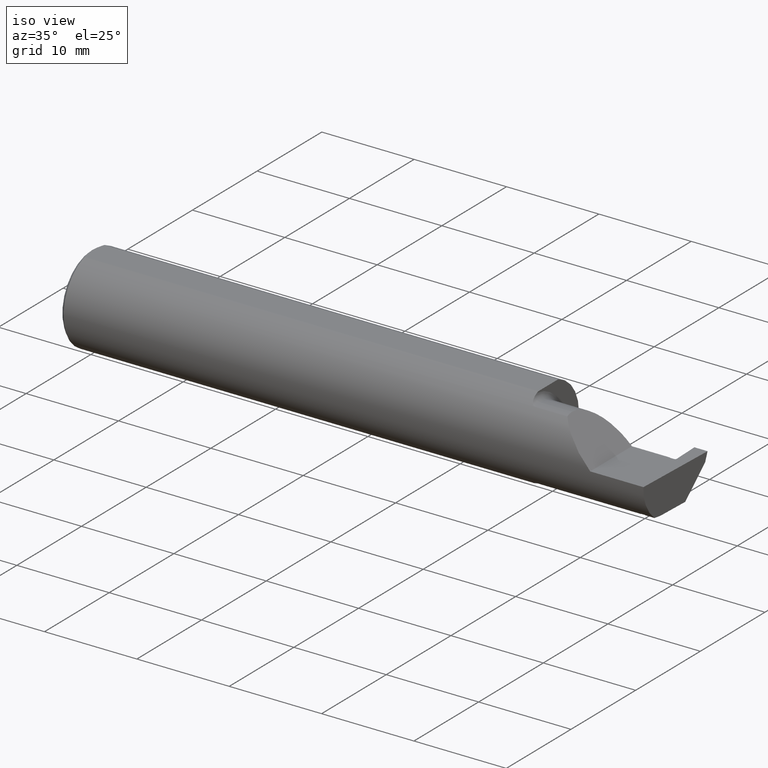
[diagram: clean part render]
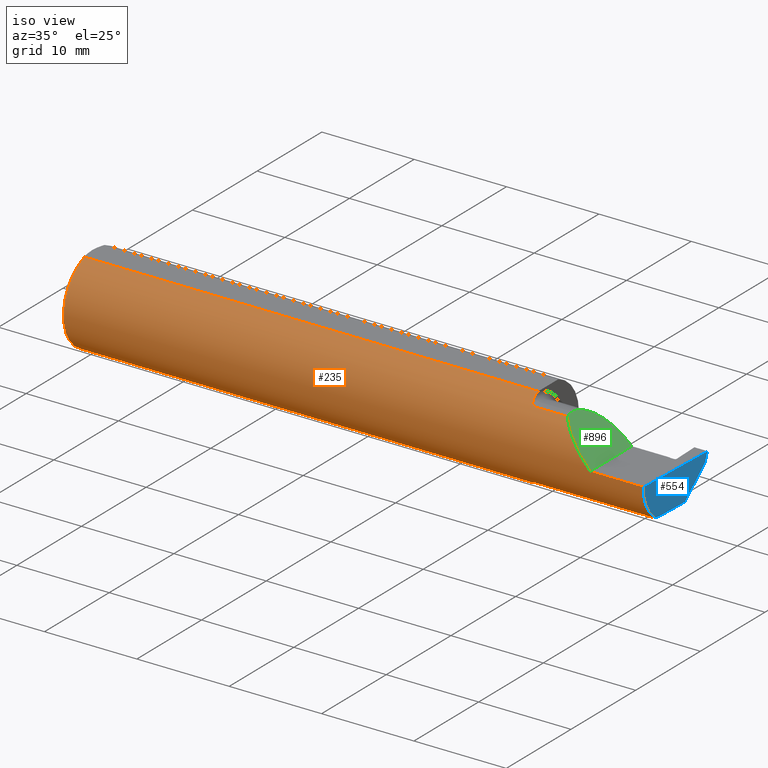
[diagram: same view with three faces highlighted in distinct colors, each labeled with its STEP entity id]
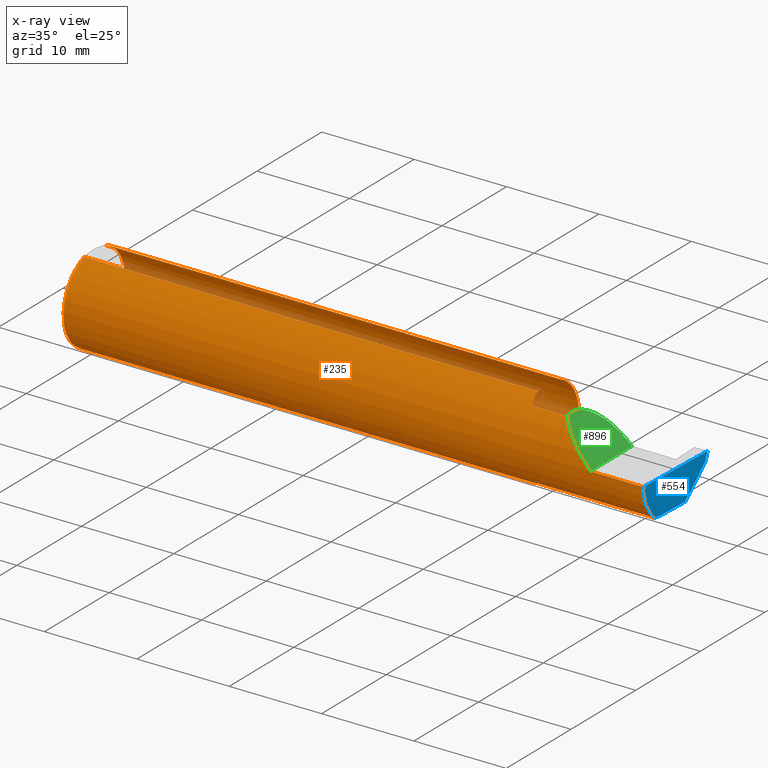
[diagram: x-ray of the same camera — body ghosted, the three highlighted faces saturated]
A machine part, iso view with three faces highlighted in distinct colors.
The next image is the same camera in x-ray (body ghosted, the three faces saturated) — at least one of them is partly hidden behind the body in this view.
Their STEP definitions:

[orange] entity #235 — the highlighted cylindrical surface (partial cylindrical patch) has radius 4.7587 mm, axis along (-1, -0, -0).
#5 = CARTESIAN_POINT ( 'NONE',  ( 1.961340974786206282, -0.1102890168945986904, -0.1514792188789464145 ) ) ;
#6 = CARTESIAN_POINT ( 'NONE',  ( 1.950346246588685162, -0.07856197451716395719, -0.1701664510438046507 ) ) ;
#35 = LINE ( 'NONE', #132, #737 ) ;
#37 = CARTESIAN_POINT ( 'NONE',  ( 1.949999999999999956, -0.06851976604679065053, 0.1743704796142198643 ) ) ;
#41 = CARTESIAN_POINT ( 'NONE',  ( 2.435367547408517019, -0.1203345206023813396, -0.1435953538642355254 ) ) ;
#45 = DIRECTION ( 'NONE',  ( -1.000000000000000000, -0.000000000000000000, -0.000000000000000000 ) ) ;
#54 = ORIENTED_EDGE ( 'NONE', *, *, #812, .T. ) ;
#58 = ORIENTED_EDGE ( 'NONE', *, *, #369, .F. ) ;
#61 = EDGE_CURVE ( 'NONE', #466, #532, #879, .T. ) ;
#64 = AXIS2_PLACEMENT_3D ( 'NONE', #178, #498, #567 ) ;
#67 = ORIENTED_EDGE ( 'NONE', *, *, #261, .F. ) ;
#69 = EDGE_CURVE ( 'NONE', #712, #448, #485, .T. ) ;
#76 = CARTESIAN_POINT ( 'NONE',  ( 2.450688798580827665, -0.1181608706206762477, -0.1453938283944338772 ) ) ;
#81 = CARTESIAN_POINT ( 'NONE',  ( 1.966924463282975211, -0.1152182125075827540, 0.1477647100440765693 ) ) ;
#84 = CARTESIAN_POINT ( 'NONE',  ( 2.260000000000000231, -0.1873499999999999888, 2.939152317953647352E-17 ) ) ;
#88 = CARTESIAN_POINT ( 'NONE',  ( 2.487009473749072441, -0.1873499999999999055, 0.000000000000000000 ) ) ;
#89 = CARTESIAN_POINT ( 'NONE',  ( 0.01499999999999756042, 0.06039039658754215278, 0.1773499999999999799 ) ) ;
#114 = FACE_OUTER_BOUND ( 'NONE', #401, .T. ) ;
#117 = CARTESIAN_POINT ( 'NONE',  ( 1.951062863587533558, -0.08334999999998814191, 0.1677879614275171183 ) ) ;
#121 = VERTEX_POINT ( 'NONE', #89 ) ;
#123 = CARTESIAN_POINT ( 'NONE',  ( 2.441709548055253087, -0.1207156342425846213, -0.1432751135033943357 ) ) ;
#128 = EDGE_CURVE ( 'NONE', #997, #650, #156, .T. ) ;
#132 = CARTESIAN_POINT ( 'NONE',  ( 2.206999999999999851, -0.1172600179964007477, -0.1461167706989302817 ) ) ;
#135 = VERTEX_POINT ( 'NONE', #84 ) ;
#140 = VERTEX_POINT ( 'NONE', #424 ) ;
#148 = VECTOR ( 'NONE', #732, 39.37007874015748143 ) ;
#155 = CARTESIAN_POINT ( 'NONE',  ( 2.451191799767826307, -0.1172600179964005812, -0.1461167706989303094 ) ) ;
#156 = B_SPLINE_CURVE_WITH_KNOTS ( 'NONE', 3,
 ( #800, #6, #965, #586 ),
 .UNSPECIFIED., .F., .F.,
 ( 4, 4 ),
 ( 0.001278539404338875510, 0.001694873732696221573 ),
 .UNSPECIFIED. ) ;
#157 = EDGE_CURVE ( 'NONE', #310, #121, #490, .T. ) ;
#158 = CARTESIAN_POINT ( 'NONE',  ( 1.965551048069661855, -0.1140002044565611855, -0.1486821290834929865 ) ) ;
#161 = CARTESIAN_POINT ( 'NONE',  ( 1.959249444250374061, -0.1073163636891284189, 0.1536158790136665786 ) ) ;
#162 = CARTESIAN_POINT ( 'NONE',  ( 2.202189699843949633, -0.1873500000000000998, 0.05781030015605104211 ) ) ;
#164 = VERTEX_POINT ( 'NONE', #495 ) ;
#167 = CARTESIAN_POINT ( 'NONE',  ( 1.974999999999999867, -0.1172600179964007477, 0.1461167706989302539 ) ) ;
#169 = B_SPLINE_CURVE_WITH_KNOTS ( 'NONE', 3,
 ( #834, #590, #277, #117 ),
 .UNSPECIFIED., .F., .F.,
 ( 4, 4 ),
 ( 4.423516731080786679E-05, 0.0004561457252213468741 ),
 .UNSPECIFIED. ) ;
#174 = CARTESIAN_POINT ( 'NONE',  ( 1.951062863587535334, -0.08334999999999985476, -0.1677879614275112619 ) ) ;
#178 = CARTESIAN_POINT ( 'NONE',  ( 1.949999999999999956, 0.000000000000000000, 0.000000000000000000 ) ) ;
#181 = EDGE_CURVE ( 'NONE', #239, #746, #233, .T. ) ;
#198 = EDGE_CURVE ( 'NONE', #778, #164, #35, .T. ) ;
#203 = VECTOR ( 'NONE', #716, 39.37007874015748143 ) ;
#207 = ORIENTED_EDGE ( 'NONE', *, *, #757, .F. ) ;
#208 = CARTESIAN_POINT ( 'NONE',  ( 2.427647260851145017, -0.1172600179964005812, -0.1461167706989303094 ) ) ;
#211 = CARTESIAN_POINT ( 'NONE',  ( 2.444528240385034579, -0.1208845165661996957, -0.1431326948273232980 ) ) ;
#218 = ORIENTED_EDGE ( 'NONE', *, *, #551, .F. ) ;
#230 = CARTESIAN_POINT ( 'NONE',  ( 2.150065971957467070, -0.1623470442677541759, 0.1099340280425336880 ) ) ;
#231 = CIRCLE ( 'NONE', #64, 0.1873499999999999888 ) ;
#233 = B_SPLINE_CURVE_WITH_KNOTS ( 'NONE', 3,
 ( #289, #211, #283, #123, #600, #530, #41, #460, #1000, #695 ),
 .UNSPECIFIED., .F., .F.,
 ( 4, 3, 3, 4 ),
 ( 1.393189244890212689E-17, 0.0001077215141513441474, 0.0002693037975399365782, 0.0004308860927659723204 ),
 .UNSPECIFIED. ) ;
#235 = ADVANCED_FACE ( 'NONE', ( #114 ), #843, .T. ) ;
#237 = CARTESIAN_POINT ( 'NONE',  ( 1.967163414264744503, -0.1151183835841406988, -0.1478135984872521180 ) ) ;
#239 = VERTEX_POINT ( 'NONE', #617 ) ;
#242 = CARTESIAN_POINT ( 'NONE',  ( 1.955806801261506855, -0.1009700360460131507, -0.1578590382459147401 ) ) ;
#243 = ORIENTED_EDGE ( 'NONE', *, *, #347, .F. ) ;
#250 = VERTEX_POINT ( 'NONE', #1003 ) ;
#251 = AXIS2_PLACEMENT_3D ( 'NONE', #450, #689, #606 ) ;
#261 = EDGE_CURVE ( 'NONE', #532, #598, #676, .T. ) ;
#266 = CARTESIAN_POINT ( 'NONE',  ( 1.952158970028690543, -0.09067355718685699006, 0.1641499263364886163 ) ) ;
#267 = CARTESIAN_POINT ( 'NONE',  ( 2.113883229301070532, -0.1172600179964006645, 0.1461167706989302539 ) ) ;
#269 = ORIENTED_EDGE ( 'NONE', *, *, #181, .F. ) ;
#277 = CARTESIAN_POINT ( 'NONE',  ( 1.950344683557281300, -0.07855153123406181936, 0.1701716388274757685 ) ) ;
#283 = CARTESIAN_POINT ( 'NONE',  ( 2.443118891017411087, -0.1208001381097835586, -0.1432039152493819190 ) ) ;
#288 = CARTESIAN_POINT ( 'NONE',  ( 2.428107891671470231, -0.1181636587484602707, -0.1453915908968996529 ) ) ;
#289 = CARTESIAN_POINT ( 'NONE',  ( 2.445937596161425365, -0.1209687695218782666, -0.1430614528807906960 ) ) ;
#293 = DIRECTION ( 'NONE',  ( 0.000000000000000000, 0.000000000000000000, -1.000000000000000000 ) ) ;
#310 = VERTEX_POINT ( 'NONE', #597 ) ;
#312 = EDGE_CURVE ( 'NONE', #250, #466, #472, .T. ) ;
#314 = CARTESIAN_POINT ( 'NONE',  ( 2.447211118896980508, -0.1210449020109016921, -0.1429970773740948942 ) ) ;
#315 = CARTESIAN_POINT ( 'NONE',  ( 2.206999999999999851, -0.1172600179964007477, 0.1461167706989302817 ) ) ;
#320 = CARTESIAN_POINT ( 'NONE',  ( 1.972868998470237667, -0.1172600179964007339, -0.1461167706989302539 ) ) ;
#332 = ORIENTED_EDGE ( 'NONE', *, *, #61, .F. ) ;
#346 = ORIENTED_EDGE ( 'NONE', *, *, #858, .T. ) ;
#347 = EDGE_CURVE ( 'NONE', #164, #239, #545, .T. ) ;
#354 =( BOUNDED_CURVE ( )  B_SPLINE_CURVE ( 3, ( #476, #789, #568, #88 ),
 .UNSPECIFIED., .F., .T. ) 
 B_SPLINE_CURVE_WITH_KNOTS ( ( 4, 4 ),
 ( 6.032366188922103412, 6.926893589830550368 ),
 .UNSPECIFIED. ) 
 CURVE ( )  GEOMETRIC_REPRESENTATION_ITEM ( )  RATIONAL_B_SPLINE_CURVE ( ( 1.000000000000000000, 0.9344226172588803170, 0.9344226172588803170, 1.000000000000000000 ) ) 
 REPRESENTATION_ITEM ( '' )  );
#356 = CIRCLE ( 'NONE', #866, 0.1873499999999999888 ) ;
#369 = EDGE_CURVE ( 'NONE', #121, #250, #356, .T. ) ;
#380 = ORIENTED_EDGE ( 'NONE', *, *, #128, .F. ) ;
#382 = CARTESIAN_POINT ( 'NONE',  ( 2.448382007790243620, -0.1204607716139674406, -0.1434925048654560054 ) ) ;
#401 = EDGE_LOOP ( 'NONE', ( #640, #346, #786, #54, #616, #833, #807, #67, #332, #603, #58, #813, #218, #380, #207, #644, #876, #269, #243 ) ) ;
#404 = CARTESIAN_POINT ( 'NONE',  ( 2.260000000000000231, -0.1873499999999999888, 2.939152317953647352E-17 ) ) ;
#411 = CARTESIAN_POINT ( 'NONE',  ( 2.113883229301070532, -0.1172600179964006645, 0.1461167706989302539 ) ) ;
#414 = B_SPLINE_CURVE_WITH_KNOTS ( 'NONE', 3,
 ( #465, #320, #484, #237, #158, #5, #794, #242, #810, #562, #961, #174 ),
 .UNSPECIFIED., .F., .F.,
 ( 4, 2, 2, 2, 2, 4 ),
 ( 1.967976973658592312E-07, 0.0001599896235275547862, 0.0003197824493577436779, 0.0006393681010181210276, 0.0009589537526784982146, 0.001278539404338875510 ),
 .UNSPECIFIED. ) ;
#417 = CARTESIAN_POINT ( 'NONE',  ( 1.961319809340846376, -0.1102629523538396217, 0.1514982751257169247 ) ) ;
#419 = CARTESIAN_POINT ( 'NONE',  ( 0.000000000000000000, 0.06039039658753697637, 0.1773499999999999799 ) ) ;
#424 = CARTESIAN_POINT ( 'NONE',  ( 1.951062863587533558, -0.08334999999998814191, 0.1677879614275171183 ) ) ;
#448 = VERTEX_POINT ( 'NONE', #980 ) ;
#450 = CARTESIAN_POINT ( 'NONE',  ( 0.000000000000000000, 0.000000000000000000, 0.000000000000000000 ) ) ;
#458 = VECTOR ( 'NONE', #891, 39.37007874015748143 ) ;
#460 = CARTESIAN_POINT ( 'NONE',  ( 2.433253561409998600, -0.1202072007494127959, -0.1437020493321447545 ) ) ;
#465 = CARTESIAN_POINT ( 'NONE',  ( 1.974999999999999867, -0.1172600179964006922, -0.1461167706989302817 ) ) ;
#466 = VERTEX_POINT ( 'NONE', #960 ) ;
#467 = CARTESIAN_POINT ( 'NONE',  ( 2.429025632386660583, -0.1199517158066738254, -0.1439152819370999037 ) ) ;
#472 = CIRCLE ( 'NONE', #535, 0.1873499999999999888 ) ;
#476 = CARTESIAN_POINT ( 'NONE',  ( 2.485628535317038867, -0.1172600179964007477, -0.1461167706989302817 ) ) ;
#477 = DIRECTION ( 'NONE',  ( 1.000000000000000000, 0.000000000000000000, 0.000000000000000000 ) ) ;
#478 = CARTESIAN_POINT ( 'NONE',  ( 2.445937596161425365, -0.1209687695218782666, -0.1430614528807906960 ) ) ;
#482 = EDGE_CURVE ( 'NONE', #140, #559, #614, .T. ) ;
#484 = CARTESIAN_POINT ( 'NONE',  ( 1.970804171164107332, -0.1167508198888949633, -0.1465276362740037530 ) ) ;
#485 = LINE ( 'NONE', #1031, #521 ) ;
#490 = LINE ( 'NONE', #419, #148 ) ;
#495 = CARTESIAN_POINT ( 'NONE',  ( 2.451191799767826307, -0.1172600179964005812, -0.1461167706989303094 ) ) ;
#498 = DIRECTION ( 'NONE',  ( 1.000000000000000000, 0.000000000000000000, 0.000000000000000000 ) ) ;
#501 = CARTESIAN_POINT ( 'NONE',  ( 2.487009473749072441, -0.1873499999999999055, 0.000000000000000000 ) ) ;
#503 = AXIS2_PLACEMENT_3D ( 'NONE', #698, #682, #293 ) ;
#521 = VECTOR ( 'NONE', #704, 39.37007874015748143 ) ;
#530 = CARTESIAN_POINT ( 'NONE',  ( 2.437481533252171761, -0.1204618404460228720, -0.1434886584041424606 ) ) ;
#532 = VERTEX_POINT ( 'NONE', #895 ) ;
#535 = AXIS2_PLACEMENT_3D ( 'NONE', #544, #862, #776 ) ;
#537 = CARTESIAN_POINT ( 'NONE',  ( 2.429025632386660583, -0.1199517158066738254, -0.1439152819370999037 ) ) ;
#544 = CARTESIAN_POINT ( 'NONE',  ( 0.01499999999999999944, 0.000000000000000000, 0.000000000000000000 ) ) ;
#545 = B_SPLINE_CURVE_WITH_KNOTS ( 'NONE', 3,
 ( #155, #76, #642, #382, #314, #478 ),
 .UNSPECIFIED., .F., .F.,
 ( 4, 2, 4 ),
 ( 0.0002908273715208986934, 0.0003847775289457093821, 0.0004787276863705201249 ),
 .UNSPECIFIED. ) ;
#550 = CARTESIAN_POINT ( 'NONE',  ( 2.485628535317038867, -0.1172600179964007477, -0.1461167706989302817 ) ) ;
#551 = EDGE_CURVE ( 'NONE', #650, #310, #231, .T. ) ;
#556 = DIRECTION ( 'NONE',  ( -1.000000000000000000, -0.000000000000000000, -0.000000000000000000 ) ) ;
#559 = VERTEX_POINT ( 'NONE', #595 ) ;
#562 = CARTESIAN_POINT ( 'NONE',  ( 1.952380638915944600, -0.09060738690120603844, -0.1640321561807270845 ) ) ;
#566 = EDGE_CURVE ( 'NONE', #598, #140, #169, .T. ) ;
#567 = DIRECTION ( 'NONE',  ( 0.000000000000000000, 0.000000000000000000, -1.000000000000000000 ) ) ;
#568 = CARTESIAN_POINT ( 'NONE',  ( 2.485494735025390867, -0.1873500000000000443, -0.05781030015605120170 ) ) ;
#586 = CARTESIAN_POINT ( 'NONE',  ( 1.949999999999999956, -0.06851976604679065053, -0.1743704796142198643 ) ) ;
#590 = CARTESIAN_POINT ( 'NONE',  ( 1.949999999999999512, -0.07360907839729495528, 0.1723706084642000758 ) ) ;
#595 = CARTESIAN_POINT ( 'NONE',  ( 1.974999999999999867, -0.1172600179964007477, 0.1461167706989302539 ) ) ;
#597 = CARTESIAN_POINT ( 'NONE',  ( 1.949999999999999956, 0.06039039658754216666, 0.1773499999999999799 ) ) ;
#598 = VERTEX_POINT ( 'NONE', #37 ) ;
#600 = CARTESIAN_POINT ( 'NONE',  ( 2.439595533463657873, -0.1205888784328906921, -0.1433819108919077989 ) ) ;
#603 = ORIENTED_EDGE ( 'NONE', *, *, #312, .F. ) ;
#606 = DIRECTION ( 'NONE',  ( 0.000000000000000000, 0.000000000000000000, 1.000000000000000000 ) ) ;
#614 = B_SPLINE_CURVE_WITH_KNOTS ( 'NONE', 3,
 ( #969, #266, #735, #161, #417, #81, #647, #167 ),
 .UNSPECIFIED., .F., .F.,
 ( 4, 2, 2, 4 ),
 ( 0.0004561457252213468741, 0.001084815134961798723, 0.001399149839832029146, 0.001713484544702259353 ),
 .UNSPECIFIED. ) ;
#616 = ORIENTED_EDGE ( 'NONE', *, *, #826, .F. ) ;
#617 = CARTESIAN_POINT ( 'NONE',  ( 2.445937596161425365, -0.1209687695218782666, -0.1430614528807906960 ) ) ;
#628 = CARTESIAN_POINT ( 'NONE',  ( 2.427647260851145017, -0.1172600179964005812, -0.1461167706989303094 ) ) ;
#640 = ORIENTED_EDGE ( 'NONE', *, *, #198, .F. ) ;
#642 = CARTESIAN_POINT ( 'NONE',  ( 2.450071708900211309, -0.1190227893687352406, -0.1446874979439518039 ) ) ;
#644 = ORIENTED_EDGE ( 'NONE', *, *, #69, .F. ) ;
#647 = CARTESIAN_POINT ( 'NONE',  ( 1.970724556588813403, -0.1172600179964060907, 0.1461167706989260906 ) ) ;
#650 = VERTEX_POINT ( 'NONE', #863 ) ;
#655 = VECTOR ( 'NONE', #477, 39.37007874015748143 ) ;
#676 = CIRCLE ( 'NONE', #503, 0.1873499999999999888 ) ;
#682 = DIRECTION ( 'NONE',  ( 1.000000000000000000, 0.000000000000000000, 0.000000000000000000 ) ) ;
#689 = DIRECTION ( 'NONE',  ( -1.000000000000000000, -0.000000000000000000, -0.000000000000000000 ) ) ;
#695 = CARTESIAN_POINT ( 'NONE',  ( 2.429025632386660583, -0.1199517158066738254, -0.1439152819370999037 ) ) ;
#698 = CARTESIAN_POINT ( 'NONE',  ( 1.949999999999999956, 0.000000000000000000, 0.000000000000000000 ) ) ;
#704 = DIRECTION ( 'NONE',  ( -1.000000000000000000, -0.000000000000000000, -0.000000000000000000 ) ) ;
#706 = CARTESIAN_POINT ( 'NONE',  ( 2.428567406358855596, -0.1190609576996921604, -0.1446577184724210652 ) ) ;
#707 = CARTESIAN_POINT ( 'NONE',  ( 0.01499999999999999944, 0.000000000000000000, 0.000000000000000000 ) ) ;
#712 = VERTEX_POINT ( 'NONE', #628 ) ;
#716 = DIRECTION ( 'NONE',  ( -1.000000000000000000, -0.000000000000000000, -0.000000000000000000 ) ) ;
#721 = LINE ( 'NONE', #805, #203 ) ;
#731 = LINE ( 'NONE', #315, #458 ) ;
#732 = DIRECTION ( 'NONE',  ( -1.000000000000000000, -0.000000000000000000, -0.000000000000000000 ) ) ;
#735 = CARTESIAN_POINT ( 'NONE',  ( 1.954075010165368553, -0.09778159395695858180, 0.1599914159748311027 ) ) ;
#737 = VECTOR ( 'NONE', #45, 39.37007874015748143 ) ;
#746 = VERTEX_POINT ( 'NONE', #537 ) ;
#749 =( BOUNDED_CURVE ( )  B_SPLINE_CURVE ( 3, ( #404, #162, #230, #411 ),
 .UNSPECIFIED., .F., .T. ) 
 B_SPLINE_CURVE_WITH_KNOTS ( ( 4, 4 ),
 ( 4.712388980384688786, 5.606916381293136631 ),
 .UNSPECIFIED. ) 
 CURVE ( )  GEOMETRIC_REPRESENTATION_ITEM ( )  RATIONAL_B_SPLINE_CURVE ( ( 1.000000000000000000, 0.9344226172588802060, 0.9344226172588802060, 1.000000000000000000 ) ) 
 REPRESENTATION_ITEM ( '' )  );
#757 = EDGE_CURVE ( 'NONE', #448, #997, #414, .T. ) ;
#776 = DIRECTION ( 'NONE',  ( 0.000000000000000000, 0.000000000000000000, 1.000000000000000000 ) ) ;
#778 = VERTEX_POINT ( 'NONE', #550 ) ;
#786 = ORIENTED_EDGE ( 'NONE', *, *, #803, .T. ) ;
#789 = CARTESIAN_POINT ( 'NONE',  ( 2.485002117657001186, -0.1623470442677541481, -0.1099340280425338545 ) ) ;
#794 = CARTESIAN_POINT ( 'NONE',  ( 1.959228130464466089, -0.1072797540790367127, -0.1536407449207395637 ) ) ;
#800 = CARTESIAN_POINT ( 'NONE',  ( 1.951062863587535334, -0.08334999999999985476, -0.1677879614275112619 ) ) ;
#803 = EDGE_CURVE ( 'NONE', #959, #135, #721, .T. ) ;
#805 = CARTESIAN_POINT ( 'NONE',  ( 3.749399456654646757E-32, -0.1873499999999999888, 3.061616997868384127E-16 ) ) ;
#807 = ORIENTED_EDGE ( 'NONE', *, *, #566, .F. ) ;
#810 = CARTESIAN_POINT ( 'NONE',  ( 1.954475235432781011, -0.09757364237049404032, -0.1599863467203317124 ) ) ;
#812 = EDGE_CURVE ( 'NONE', #135, #983, #749, .T. ) ;
#813 = ORIENTED_EDGE ( 'NONE', *, *, #157, .F. ) ;
#826 = EDGE_CURVE ( 'NONE', #559, #983, #731, .T. ) ;
#833 = ORIENTED_EDGE ( 'NONE', *, *, #482, .F. ) ;
#834 = CARTESIAN_POINT ( 'NONE',  ( 1.949999999999999956, -0.06851976604679065053, 0.1743704796142198643 ) ) ;
#843 = CYLINDRICAL_SURFACE ( 'NONE', #251, 0.1873499999999999888 ) ;
#857 = B_SPLINE_CURVE_WITH_KNOTS ( 'NONE', 3,
 ( #467, #706, #288, #208 ),
 .UNSPECIFIED., .F., .F.,
 ( 4, 4 ),
 ( 4.944722691628275482E-18, 9.500698411876581310E-05 ),
 .UNSPECIFIED. ) ;
#858 = EDGE_CURVE ( 'NONE', #778, #959, #354, .T. ) ;
#862 = DIRECTION ( 'NONE',  ( -1.000000000000000000, -0.000000000000000000, -0.000000000000000000 ) ) ;
#863 = CARTESIAN_POINT ( 'NONE',  ( 1.949999999999999956, -0.06851976604679065053, -0.1743704796142198643 ) ) ;
#866 = AXIS2_PLACEMENT_3D ( 'NONE', #707, #556, #1029 ) ;
#876 = ORIENTED_EDGE ( 'NONE', *, *, #1013, .F. ) ;
#879 = LINE ( 'NONE', #1028, #655 ) ;
#891 = DIRECTION ( 'NONE',  ( 1.000000000000000000, 0.000000000000000000, 0.000000000000000000 ) ) ;
#895 = CARTESIAN_POINT ( 'NONE',  ( 1.949999999999999956, -0.06039039658753699025, 0.1773499999999999799 ) ) ;
#908 = CARTESIAN_POINT ( 'NONE',  ( 1.951062863587535334, -0.08334999999999985476, -0.1677879614275112619 ) ) ;
#959 = VERTEX_POINT ( 'NONE', #501 ) ;
#960 = CARTESIAN_POINT ( 'NONE',  ( 0.01499999999999999944, -0.06039039658753697637, 0.1773499999999999799 ) ) ;
#961 = CARTESIAN_POINT ( 'NONE',  ( 1.951612951569643206, -0.08702537370779851733, -0.1659621904011591709 ) ) ;
#965 = CARTESIAN_POINT ( 'NONE',  ( 1.949999999999999956, -0.07359296612170562746, -0.1723769398647691520 ) ) ;
#969 = CARTESIAN_POINT ( 'NONE',  ( 1.951062863587533558, -0.08334999999998814191, 0.1677879614275171183 ) ) ;
#980 = CARTESIAN_POINT ( 'NONE',  ( 1.974999999999999867, -0.1172600179964006922, -0.1461167706989302817 ) ) ;
#983 = VERTEX_POINT ( 'NONE', #267 ) ;
#997 = VERTEX_POINT ( 'NONE', #908 ) ;
#1000 = CARTESIAN_POINT ( 'NONE',  ( 2.431139589740594520, -0.1200795990372901106, -0.1438086927498444523 ) ) ;
#1003 = CARTESIAN_POINT ( 'NONE',  ( 0.01499999999999999944, 0.000000000000000000, -0.1873499999999999888 ) ) ;
#1013 = EDGE_CURVE ( 'NONE', #746, #712, #857, .T. ) ;
#1028 = CARTESIAN_POINT ( 'NONE',  ( 0.000000000000000000, -0.06039039658753697637, 0.1773499999999999799 ) ) ;
#1029 = DIRECTION ( 'NONE',  ( 0.000000000000000000, 0.000000000000000000, 1.000000000000000000 ) ) ;
#1031 = CARTESIAN_POINT ( 'NONE',  ( 2.206999999999999851, -0.1172600179964007477, -0.1461167706989302817 ) ) ;

[blue] entity #554 — the highlighted planar face has unit normal (-0.999, 0.0349, 0.0262).
#14 = ORIENTED_EDGE ( 'NONE', *, *, #748, .T. ) ;
#16 = CARTESIAN_POINT ( 'NONE',  ( 2.500000000000000000, 0.1846500000000000363, 0.000000000000000000 ) ) ;
#23 = CARTESIAN_POINT ( 'NONE',  ( 2.491727426418679059, 0.06030305154314919563, -0.1499999999999999944 ) ) ;
#68 = VERTEX_POINT ( 'NONE', #541 ) ;
#88 = CARTESIAN_POINT ( 'NONE',  ( 2.487009473749072441, -0.1873499999999999055, 0.000000000000000000 ) ) ;
#118 = AXIS2_PLACEMENT_3D ( 'NONE', #255, #685, #998 ) ;
#129 = CARTESIAN_POINT ( 'NONE',  ( 2.499872637845352408, 0.1835478877661963770, -0.003391952678096913417 ) ) ;
#171 = VERTEX_POINT ( 'NONE', #811 ) ;
#223 = CARTESIAN_POINT ( 'NONE',  ( 2.485949549028435790, -0.1061291577212409298, -0.1486999626928445783 ) ) ;
#255 = CARTESIAN_POINT ( 'NONE',  ( 2.500000000000000000, 0.1846500000000000363, 0.000000000000000000 ) ) ;
#256 = CARTESIAN_POINT ( 'NONE',  ( 2.486311922989707490, -0.09477667630339417504, -0.1499999999999999944 ) ) ;
#262 = DIRECTION ( 'NONE',  ( -0.03489949670249477970, -0.9993908270190959842, 0.000000000000000000 ) ) ;
#298 = DIRECTION ( 'NONE',  ( -0.03568783471266506746, -0.3088201463263676727, -0.9504506802967118695 ) ) ;
#313 =( BOUNDED_CURVE ( )  B_SPLINE_CURVE ( 3, ( #623, #223, #256, #871 ),
 .UNSPECIFIED., .F., .F. ) 
 B_SPLINE_CURVE_WITH_KNOTS ( ( 4, 4 ),
 ( 0.6990500090944880007, 0.9270880441439325326 ),
 .UNSPECIFIED. ) 
 CURVE ( )  GEOMETRIC_REPRESENTATION_ITEM ( )  RATIONAL_B_SPLINE_CURVE ( ( 1.000000000000000000, 0.9956712472009929815, 0.9956712472009929815, 1.000000000000000000 ) ) 
 REPRESENTATION_ITEM ( '' )  );
#353 = ORIENTED_EDGE ( 'NONE', *, *, #858, .F. ) ;
#354 =( BOUNDED_CURVE ( )  B_SPLINE_CURVE ( 3, ( #476, #789, #568, #88 ),
 .UNSPECIFIED., .F., .T. ) 
 B_SPLINE_CURVE_WITH_KNOTS ( ( 4, 4 ),
 ( 6.032366188922103412, 6.926893589830550368 ),
 .UNSPECIFIED. ) 
 CURVE ( )  GEOMETRIC_REPRESENTATION_ITEM ( )  RATIONAL_B_SPLINE_CURVE ( ( 1.000000000000000000, 0.9344226172588803170, 0.9344226172588803170, 1.000000000000000000 ) ) 
 REPRESENTATION_ITEM ( '' )  );
#362 = LINE ( 'NONE', #818, #427 ) ;
#367 = VERTEX_POINT ( 'NONE', #793 ) ;
#389 = VECTOR ( 'NONE', #298, 39.37007874015748143 ) ;
#407 = ORIENTED_EDGE ( 'NONE', *, *, #930, .F. ) ;
#427 = VECTOR ( 'NONE', #262, 39.37007874015748854 ) ;
#428 = DIRECTION ( 'NONE',  ( -0.03489949670249478664, -0.9993908270190959842, 0.000000000000000000 ) ) ;
#434 = VERTEX_POINT ( 'NONE', #23 ) ;
#476 = CARTESIAN_POINT ( 'NONE',  ( 2.485628535317038867, -0.1172600179964007477, -0.1461167706989302817 ) ) ;
#488 = FACE_OUTER_BOUND ( 'NONE', #792, .T. ) ;
#501 = CARTESIAN_POINT ( 'NONE',  ( 2.487009473749072441, -0.1873499999999999055, 0.000000000000000000 ) ) ;
#541 = CARTESIAN_POINT ( 'NONE',  ( 2.486710951318955587, -0.08334999999999997966, -0.1499999999999999944 ) ) ;
#550 = CARTESIAN_POINT ( 'NONE',  ( 2.485628535317038867, -0.1172600179964007477, -0.1461167706989302817 ) ) ;
#552 = ORIENTED_EDGE ( 'NONE', *, *, #775, .F. ) ;
#554 = ADVANCED_FACE ( 'NONE', ( #488 ), #804, .F. ) ;
#568 = CARTESIAN_POINT ( 'NONE',  ( 2.485494735025390867, -0.1873500000000000443, -0.05781030015605120170 ) ) ;
#623 = CARTESIAN_POINT ( 'NONE',  ( 2.485628535317038867, -0.1172600179964007477, -0.1461167706989302817 ) ) ;
#630 = EDGE_CURVE ( 'NONE', #367, #959, #734, .T. ) ;
#639 = EDGE_CURVE ( 'NONE', #367, #171, #740, .T. ) ;
#643 = CARTESIAN_POINT ( 'NONE',  ( 2.498389373204160435, 0.1692961418071499968, -0.04100690973599954714 ) ) ;
#685 = DIRECTION ( 'NONE',  ( -0.9990483607430193924, 0.03488753751660920999, 0.02617694830787320806 ) ) ;
#718 = VECTOR ( 'NONE', #799, 39.37007874015748143 ) ;
#734 = LINE ( 'NONE', #16, #853 ) ;
#740 = LINE ( 'NONE', #129, #389 ) ;
#748 = EDGE_CURVE ( 'NONE', #778, #68, #313, .T. ) ;
#775 = EDGE_CURVE ( 'NONE', #171, #434, #1035, .T. ) ;
#778 = VERTEX_POINT ( 'NONE', #550 ) ;
#789 = CARTESIAN_POINT ( 'NONE',  ( 2.485002117657001186, -0.1623470442677541481, -0.1099340280425338545 ) ) ;
#792 = EDGE_LOOP ( 'NONE', ( #14, #407, #552, #1011, #943, #353 ) ) ;
#793 = CARTESIAN_POINT ( 'NONE',  ( 2.500000000000000000, 0.1846500000000000363, 0.000000000000000000 ) ) ;
#799 = DIRECTION ( 'NONE',  ( -0.04317993108638582683, -0.7064472710512009757, -0.7064472710511987552 ) ) ;
#804 = PLANE ( 'NONE',  #118 ) ;
#811 = CARTESIAN_POINT ( 'NONE',  ( 2.498573163503173156, 0.1723030515431495657, -0.03799999999999999212 ) ) ;
#818 = CARTESIAN_POINT ( 'NONE',  ( 2.493549313964080305, 0.1124750847462631514, -0.1499999999999999944 ) ) ;
#853 = VECTOR ( 'NONE', #428, 39.37007874015748854 ) ;
#858 = EDGE_CURVE ( 'NONE', #778, #959, #354, .T. ) ;
#871 = CARTESIAN_POINT ( 'NONE',  ( 2.486710951318955587, -0.08334999999999997966, -0.1499999999999999944 ) ) ;
#930 = EDGE_CURVE ( 'NONE', #434, #68, #362, .T. ) ;
#943 = ORIENTED_EDGE ( 'NONE', *, *, #630, .T. ) ;
#959 = VERTEX_POINT ( 'NONE', #501 ) ;
#998 = DIRECTION ( 'NONE',  ( -0.03489949670249477970, -0.9993908270190959842, 0.000000000000000000 ) ) ;
#1011 = ORIENTED_EDGE ( 'NONE', *, *, #639, .F. ) ;
#1035 = LINE ( 'NONE', #643, #718 ) ;

[green] entity #896 — the highlighted planar face has unit normal (-0.7071, 0, -0.7071).
#8 = EDGE_CURVE ( 'NONE', #983, #413, #671, .T. ) ;
#38 = DIRECTION ( 'NONE',  ( -0.7071067811865454633, 0.000000000000000000, 0.7071067811865496822 ) ) ;
#65 = CARTESIAN_POINT ( 'NONE',  ( 2.110000000000001208, 0.004517965644035767080, 0.1499999999999999667 ) ) ;
#84 = CARTESIAN_POINT ( 'NONE',  ( 2.260000000000000231, -0.1873499999999999888, 2.939152317953647352E-17 ) ) ;
#102 =( BOUNDED_CURVE ( )  B_SPLINE_CURVE ( 3, ( #468, #65, #319, #138 ),
 .UNSPECIFIED., .F., .T. ) 
 B_SPLINE_CURVE_WITH_KNOTS ( ( 4, 4 ),
 ( 0.000000000000000000, 1.570796326794896558 ),
 .UNSPECIFIED. ) 
 CURVE ( )  GEOMETRIC_REPRESENTATION_ITEM ( )  RATIONAL_B_SPLINE_CURVE ( ( 1.000000000000000000, 0.8047378541243649375, 0.8047378541243649375, 1.000000000000000000 ) ) 
 REPRESENTATION_ITEM ( '' )  );
#109 = ORIENTED_EDGE ( 'NONE', *, *, #343, .F. ) ;
#133 = AXIS2_PLACEMENT_3D ( 'NONE', #681, #446, #38 ) ;
#135 = VERTEX_POINT ( 'NONE', #84 ) ;
#138 = CARTESIAN_POINT ( 'NONE',  ( 2.260000000000000231, 0.06664999999999998703, 2.939152317953647352E-17 ) ) ;
#160 = VERTEX_POINT ( 'NONE', #257 ) ;
#162 = CARTESIAN_POINT ( 'NONE',  ( 2.202189699843949633, -0.1873500000000000998, 0.05781030015605104211 ) ) ;
#163 = CARTESIAN_POINT ( 'NONE',  ( 2.110000000000000764, -0.09477667630339417504, 0.1499999999999999667 ) ) ;
#199 = DIRECTION ( 'NONE',  ( -0.000000000000000000, 1.000000000000000000, -0.000000000000000000 ) ) ;
#230 = CARTESIAN_POINT ( 'NONE',  ( 2.150065971957467070, -0.1623470442677541759, 0.1099340280425336880 ) ) ;
#257 = CARTESIAN_POINT ( 'NONE',  ( 2.260000000000000231, 0.06664999999999998703, 2.939152317953647352E-17 ) ) ;
#267 = CARTESIAN_POINT ( 'NONE',  ( 2.113883229301070532, -0.1172600179964006645, 0.1461167706989302539 ) ) ;
#281 = LINE ( 'NONE', #760, #368 ) ;
#295 = ORIENTED_EDGE ( 'NONE', *, *, #812, .F. ) ;
#317 = CARTESIAN_POINT ( 'NONE',  ( 2.110000000000001208, -0.08334999999999996578, 0.1499999999999999667 ) ) ;
#319 = CARTESIAN_POINT ( 'NONE',  ( 2.172132034355964691, 0.06665000000000000091, 0.08786796564403574761 ) ) ;
#342 = PLANE ( 'NONE',  #133 ) ;
#343 = EDGE_CURVE ( 'NONE', #413, #160, #102, .T. ) ;
#368 = VECTOR ( 'NONE', #199, 39.37007874015748143 ) ;
#404 = CARTESIAN_POINT ( 'NONE',  ( 2.260000000000000231, -0.1873499999999999888, 2.939152317953647352E-17 ) ) ;
#411 = CARTESIAN_POINT ( 'NONE',  ( 2.113883229301070532, -0.1172600179964006645, 0.1461167706989302539 ) ) ;
#413 = VERTEX_POINT ( 'NONE', #905 ) ;
#446 = DIRECTION ( 'NONE',  ( -0.7071067811865496822, 0.000000000000000000, -0.7071067811865454633 ) ) ;
#451 = ORIENTED_EDGE ( 'NONE', *, *, #8, .F. ) ;
#468 = CARTESIAN_POINT ( 'NONE',  ( 2.110000000000001208, -0.08334999999999996578, 0.1499999999999999667 ) ) ;
#553 = ORIENTED_EDGE ( 'NONE', *, *, #558, .T. ) ;
#558 = EDGE_CURVE ( 'NONE', #135, #160, #281, .T. ) ;
#671 =( BOUNDED_CURVE ( )  B_SPLINE_CURVE ( 3, ( #962, #785, #163, #317 ),
 .UNSPECIFIED., .F., .T. ) 
 B_SPLINE_CURVE_WITH_KNOTS ( ( 4, 4 ),
 ( 6.055147272130142255, 6.283185307179586232 ),
 .UNSPECIFIED. ) 
 CURVE ( )  GEOMETRIC_REPRESENTATION_ITEM ( )  RATIONAL_B_SPLINE_CURVE ( ( 1.000000000000000000, 0.9956712472009929815, 0.9956712472009929815, 1.000000000000000000 ) ) 
 REPRESENTATION_ITEM ( '' )  );
#681 = CARTESIAN_POINT ( 'NONE',  ( 2.260000000000000231, -0.2000000000000000111, 2.939152317953647352E-17 ) ) ;
#749 =( BOUNDED_CURVE ( )  B_SPLINE_CURVE ( 3, ( #404, #162, #230, #411 ),
 .UNSPECIFIED., .F., .T. ) 
 B_SPLINE_CURVE_WITH_KNOTS ( ( 4, 4 ),
 ( 4.712388980384688786, 5.606916381293136631 ),
 .UNSPECIFIED. ) 
 CURVE ( )  GEOMETRIC_REPRESENTATION_ITEM ( )  RATIONAL_B_SPLINE_CURVE ( ( 1.000000000000000000, 0.9344226172588802060, 0.9344226172588802060, 1.000000000000000000 ) ) 
 REPRESENTATION_ITEM ( '' )  );
#760 = CARTESIAN_POINT ( 'NONE',  ( 2.260000000000000231, -0.2000000000000000111, 2.939152317953647352E-17 ) ) ;
#785 = CARTESIAN_POINT ( 'NONE',  ( 2.111300037307155986, -0.1061291577212409298, 0.1486999626928446061 ) ) ;
#812 = EDGE_CURVE ( 'NONE', #135, #983, #749, .T. ) ;
#874 = FACE_OUTER_BOUND ( 'NONE', #899, .T. ) ;
#896 = ADVANCED_FACE ( 'NONE', ( #874 ), #342, .F. ) ;
#899 = EDGE_LOOP ( 'NONE', ( #451, #295, #553, #109 ) ) ;
#905 = CARTESIAN_POINT ( 'NONE',  ( 2.110000000000001208, -0.08334999999999996578, 0.1499999999999999667 ) ) ;
#962 = CARTESIAN_POINT ( 'NONE',  ( 2.113883229301070532, -0.1172600179964006645, 0.1461167706989302539 ) ) ;
#983 = VERTEX_POINT ( 'NONE', #267 ) ;